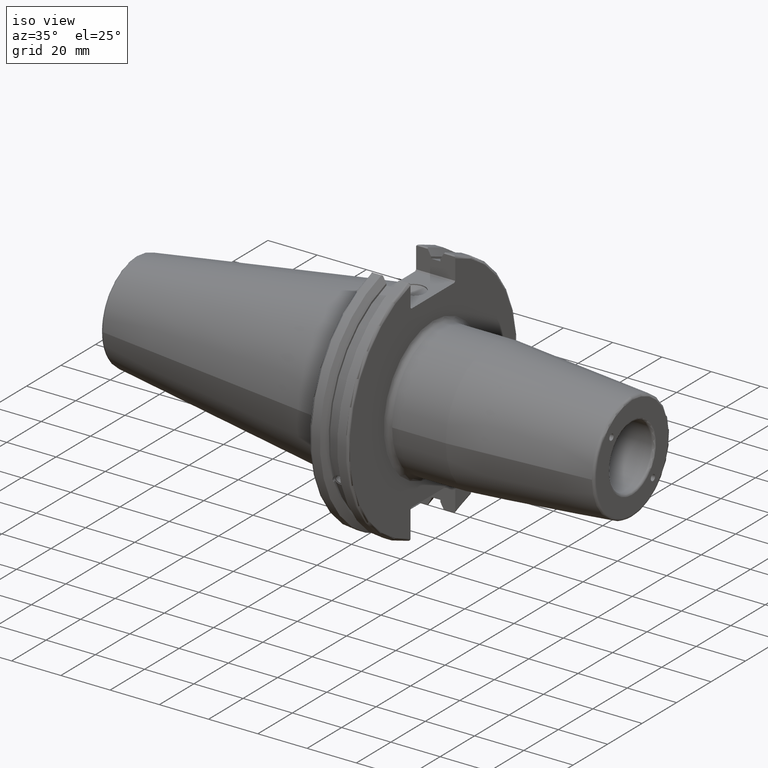
[diagram: clean part render]
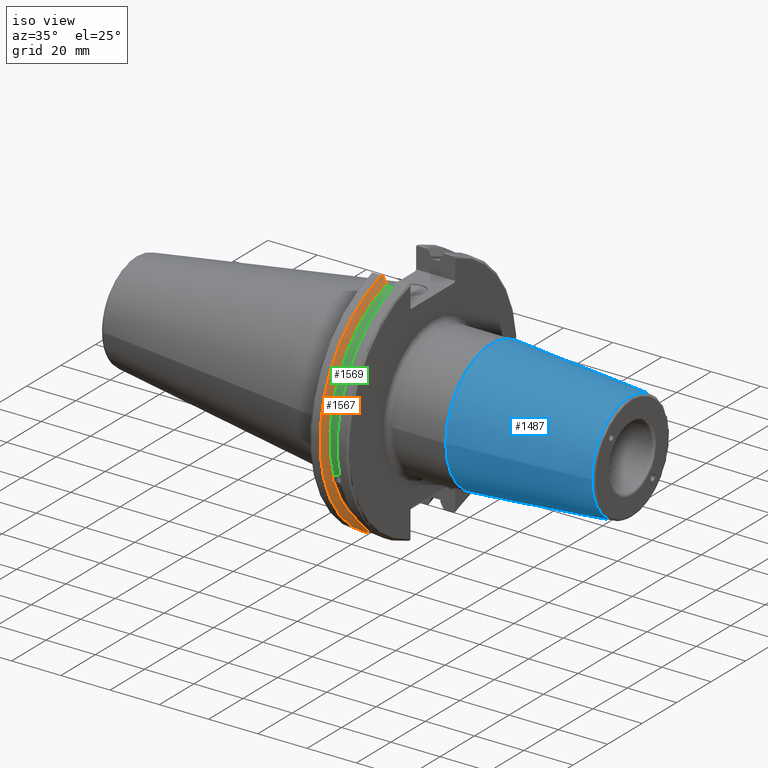
[diagram: same view with three faces highlighted in distinct colors, each labeled with its STEP entity id]
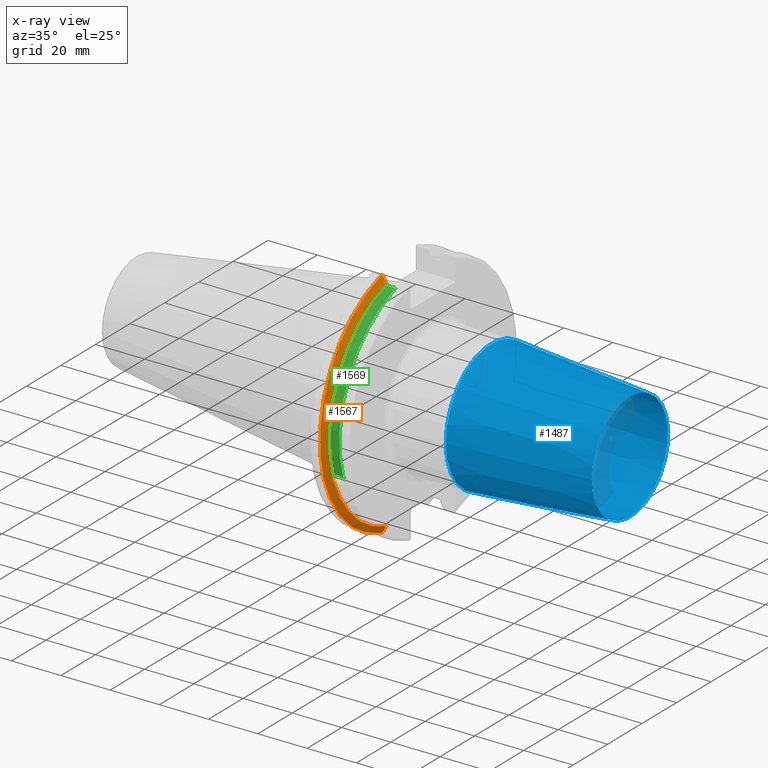
[diagram: x-ray of the same camera — body ghosted, the three highlighted faces saturated]
A machine part, iso view with three faces highlighted in distinct colors.
The next image is the same camera in x-ray (body ghosted, the three faces saturated) — at least one of them is partly hidden behind the body in this view.
Their STEP definitions:

[orange] entity #1567 — the highlighted conical surface has half-angle 60 deg.
#25=(
BOUNDED_CURVE()
B_SPLINE_CURVE(2,(#2961,#2962,#2963),.UNSPECIFIED.,.F.,.F.)
B_SPLINE_CURVE_WITH_KNOTS((3,3),(0.,0.275823910674601),.UNSPECIFIED.)
CURVE()
GEOMETRIC_REPRESENTATION_ITEM()
RATIONAL_B_SPLINE_CURVE((1.,1.00038235573593,1.00012873636487))
REPRESENTATION_ITEM('')
);
#26=(
BOUNDED_CURVE()
B_SPLINE_CURVE(2,(#2973,#2974,#2975),.UNSPECIFIED.,.F.,.F.)
B_SPLINE_CURVE_WITH_KNOTS((3,3),(0.0558332664507492,0.331657177124507),
 .UNSPECIFIED.)
CURVE()
GEOMETRIC_REPRESENTATION_ITEM()
RATIONAL_B_SPLINE_CURVE((1.00012873636807,1.00038235574544,1.))
REPRESENTATION_ITEM('')
);
#27=(
BOUNDED_CURVE()
B_SPLINE_CURVE(2,(#3008,#3009,#3010),.UNSPECIFIED.,.F.,.F.)
B_SPLINE_CURVE_WITH_KNOTS((3,3),(0.,0.0648240472897372),.UNSPECIFIED.)
CURVE()
GEOMETRIC_REPRESENTATION_ITEM()
RATIONAL_B_SPLINE_CURVE((1.,1.00011477674836,1.00019140645948))
REPRESENTATION_ITEM('')
);
#28=(
BOUNDED_CURVE()
B_SPLINE_CURVE(2,(#3016,#3017,#3018),.UNSPECIFIED.,.F.,.F.)
B_SPLINE_CURVE_WITH_KNOTS((3,3),(0.325260944932348,0.390084992222201),
 .UNSPECIFIED.)
CURVE()
GEOMETRIC_REPRESENTATION_ITEM()
RATIONAL_B_SPLINE_CURVE((1.00019140645916,1.00011477674817,1.))
REPRESENTATION_ITEM('')
);
#41=B_SPLINE_CURVE_WITH_KNOTS('',3,(#2505,#2506,#2507,#2508,#2509,#2510,
#2511,#2512,#2513,#2514,#2515,#2516,#2517,#2518),.UNSPECIFIED.,.F.,.F.,
(4,2,2,2,2,2,4),(0.426712868358719,0.441644498666906,0.48031331322313,0.518982127779354,
0.557650942335578,0.596319756891801,0.611251387199988),.UNSPECIFIED.);
#82=CONICAL_SURFACE('',#1755,47.8172386482472,1.0471975511966);
#446=FACE_OUTER_BOUND('',#556,.T.);
#556=EDGE_LOOP('',(#1454,#1455,#1456,#1457,#1458,#1459,#1460,#1461));
#595=CIRCLE('',#1662,46.4219772964944);
#617=CIRCLE('',#1709,49.2125);
#633=CIRCLE('',#1756,46.4219772964944);
#686=VERTEX_POINT('',#2502);
#687=VERTEX_POINT('',#2504);
#704=VERTEX_POINT('',#2595);
#762=VERTEX_POINT('',#2958);
#763=VERTEX_POINT('',#2960);
#766=VERTEX_POINT('',#2972);
#770=VERTEX_POINT('',#3006);
#771=VERTEX_POINT('',#3012);
#855=EDGE_CURVE('',#687,#686,#41,.T.);
#878=EDGE_CURVE('',#687,#704,#595,.T.);
#956=EDGE_CURVE('',#763,#762,#25,.T.);
#962=EDGE_CURVE('',#766,#704,#26,.T.);
#970=EDGE_CURVE('',#770,#762,#27,.T.);
#972=EDGE_CURVE('',#770,#771,#617,.T.);
#973=EDGE_CURVE('',#766,#771,#28,.T.);
#1015=EDGE_CURVE('',#763,#686,#633,.T.);
#1454=ORIENTED_EDGE('',*,*,#855,.T.);
#1455=ORIENTED_EDGE('',*,*,#1015,.F.);
#1456=ORIENTED_EDGE('',*,*,#956,.T.);
#1457=ORIENTED_EDGE('',*,*,#970,.F.);
#1458=ORIENTED_EDGE('',*,*,#972,.T.);
#1459=ORIENTED_EDGE('',*,*,#973,.F.);
#1460=ORIENTED_EDGE('',*,*,#962,.T.);
#1461=ORIENTED_EDGE('',*,*,#878,.F.);
#1567=ADVANCED_FACE('',(#446),#82,.T.);
#1662=AXIS2_PLACEMENT_3D('',#2596,#1933,#1934);
#1709=AXIS2_PLACEMENT_3D('',#3014,#2067,#2068);
#1755=AXIS2_PLACEMENT_3D('',#3130,#2180,#2181);
#1756=AXIS2_PLACEMENT_3D('',#3131,#2182,#2183);
#1933=DIRECTION('center_axis',(1.,0.,0.));
#1934=DIRECTION('ref_axis',(0.,0.,-1.));
#2067=DIRECTION('center_axis',(1.,0.,0.));
#2068=DIRECTION('ref_axis',(0.,0.,-1.));
#2180=DIRECTION('center_axis',(-1.,0.,0.));
#2181=DIRECTION('ref_axis',(0.,-1.,-1.22464679914735E-16));
#2182=DIRECTION('center_axis',(1.,0.,0.));
#2183=DIRECTION('ref_axis',(0.,0.,-1.));
#2502=CARTESIAN_POINT('',(9.2191,-43.9096390749305,-15.0646464421033));
#2504=CARTESIAN_POINT('',(9.2191,-43.3201030900029,-16.684383248648));
#2505=CARTESIAN_POINT('Ctrl Pts',(9.21910000000001,-43.3201030900029,-16.6843832486479));
#2506=CARTESIAN_POINT('Ctrl Pts',(9.20211843903392,-43.3613106941341,-16.6592273018006));
#2507=CARTESIAN_POINT('Ctrl Pts',(9.18608675403322,-43.4012416983557,-16.6326763251437));
#2508=CARTESIAN_POINT('Ctrl Pts',(9.13238673845037,-43.5391037343221,-16.5325130832406));
#2509=CARTESIAN_POINT('Ctrl Pts',(9.09621610663556,-43.6406982153491,-16.441180795372));
#2510=CARTESIAN_POINT('Ctrl Pts',(9.04690868251975,-43.8110833825827,-16.2291323464527));
#2511=CARTESIAN_POINT('Ctrl Pts',(9.0341,-43.8794096049168,-16.10796730316));
#2512=CARTESIAN_POINT('Ctrl Pts',(9.0341,-43.9675796948952,-15.8657219718732));
#2513=CARTESIAN_POINT('Ctrl Pts',(9.04690868251975,-43.9931221605126,-15.7289849146254));
#2514=CARTESIAN_POINT('Ctrl Pts',(9.09621610663556,-43.9989016655819,-15.4570249042867));
#2515=CARTESIAN_POINT('Ctrl Pts',(9.13238673845037,-43.9797830409458,-15.3217566390708));
#2516=CARTESIAN_POINT('Ctrl Pts',(9.18608675403322,-43.9385582852181,-15.1564111356409));
#2517=CARTESIAN_POINT('Ctrl Pts',(9.20211843903392,-43.9250360001461,-15.1104047527575));
#2518=CARTESIAN_POINT('Ctrl Pts',(9.2191,-43.9096390749305,-15.0646464421033));
#2595=CARTESIAN_POINT('',(9.2191,-12.95,-44.5791147973604));
#2596=CARTESIAN_POINT('Origin',(9.2191,0.,0.));
#2958=CARTESIAN_POINT('',(7.88638960562424,-12.95,46.9780755322918));
#2960=CARTESIAN_POINT('',(9.2191,-12.95,44.5791147973604));
#2961=CARTESIAN_POINT('Ctrl Pts',(9.2191,-12.95,44.5791147973604));
#2962=CARTESIAN_POINT('Ctrl Pts',(8.57020449055857,-12.95,45.7494966802148));
#2963=CARTESIAN_POINT('Ctrl Pts',(7.88638960562424,-12.95,46.9780755322918));
#2972=CARTESIAN_POINT('',(7.88638960562425,-12.95,-46.9780755322918));
#2973=CARTESIAN_POINT('Ctrl Pts',(7.88638960562425,-12.95,-46.9780755322918));
#2974=CARTESIAN_POINT('Ctrl Pts',(8.57020449054166,-12.95,-45.7494966802452));
#2975=CARTESIAN_POINT('Ctrl Pts',(9.2191,-12.95,-44.5791147973604));
#3006=CARTESIAN_POINT('',(7.60799096595127,-13.4317035994433,47.3440544806494));
#3008=CARTESIAN_POINT('Ctrl Pts',(7.60799096595126,-13.4317035994433,47.3440544806494));
#3009=CARTESIAN_POINT('Ctrl Pts',(7.7482689666382,-13.1896660169966,47.1601640966265));
#3010=CARTESIAN_POINT('Ctrl Pts',(7.88638960562424,-12.95,46.9780755322918));
#3012=CARTESIAN_POINT('',(7.60799096595127,-13.4317035994433,-47.3440544806494));
#3014=CARTESIAN_POINT('Origin',(7.60799096595127,0.,0.));
#3016=CARTESIAN_POINT('Ctrl Pts',(7.88638960562425,-12.95,-46.9780755322918));
#3017=CARTESIAN_POINT('Ctrl Pts',(7.74826896663813,-13.1896660169967,-47.1601640966265));
#3018=CARTESIAN_POINT('Ctrl Pts',(7.60799096595127,-13.4317035994434,-47.3440544806494));
#3130=CARTESIAN_POINT('Origin',(8.41354548297563,0.,0.));
#3131=CARTESIAN_POINT('Origin',(9.2191,0.,0.));

[blue] entity #1487 — the highlighted conical surface has half-angle 4.5 deg.
#69=CONICAL_SURFACE('',#1609,24.25,0.0785398163397448);
#84=LINE('',#2222,#178);
#178=VECTOR('',#1797,24.25);
#366=FACE_OUTER_BOUND('',#457,.T.);
#457=EDGE_LOOP('',(#1037,#1038,#1039,#1040,#1041));
#567=CIRCLE('',#1607,22.0725268420749);
#568=CIRCLE('',#1608,22.0725268420749);
#569=CIRCLE('',#1610,26.5);
#643=VERTEX_POINT('',#2215);
#644=VERTEX_POINT('',#2217);
#645=VERTEX_POINT('',#2221);
#800=EDGE_CURVE('',#643,#644,#567,.T.);
#801=EDGE_CURVE('',#644,#643,#568,.T.);
#802=EDGE_CURVE('',#644,#645,#84,.T.);
#803=EDGE_CURVE('',#645,#645,#569,.T.);
#1037=ORIENTED_EDGE('',*,*,#801,.F.);
#1038=ORIENTED_EDGE('',*,*,#802,.T.);
#1039=ORIENTED_EDGE('',*,*,#803,.T.);
#1040=ORIENTED_EDGE('',*,*,#802,.F.);
#1041=ORIENTED_EDGE('',*,*,#800,.F.);
#1487=ADVANCED_FACE('',(#366),#69,.T.);
#1607=AXIS2_PLACEMENT_3D('',#2218,#1791,#1792);
#1608=AXIS2_PLACEMENT_3D('',#2219,#1793,#1794);
#1609=AXIS2_PLACEMENT_3D('',#2220,#1795,#1796);
#1610=AXIS2_PLACEMENT_3D('',#2223,#1798,#1799);
#1791=DIRECTION('center_axis',(1.,0.,0.));
#1792=DIRECTION('ref_axis',(0.,-1.,3.06161699786838E-17));
#1793=DIRECTION('center_axis',(1.,0.,0.));
#1794=DIRECTION('ref_axis',(0.,-1.,3.06161699786838E-17));
#1795=DIRECTION('center_axis',(-1.,0.,0.));
#1796=DIRECTION('ref_axis',(0.,1.,0.));
#1797=DIRECTION('',(-0.996917333733128,-0.0784590957278449,-9.60846804471011E-18));
#1798=DIRECTION('center_axis',(1.,0.,0.));
#1799=DIRECTION('ref_axis',(0.,0.,-1.));
#2215=CARTESIAN_POINT('',(99.0784590957279,-2.70310493462411E-15,22.0725268420749));
#2217=CARTESIAN_POINT('',(99.0784590957279,-22.0725268420749,-2.70310493462411E-15));
#2218=CARTESIAN_POINT('Origin',(99.0784590957279,0.,-3.37888116828014E-15));
#2219=CARTESIAN_POINT('Origin',(99.0784590957279,0.,-3.37888116828014E-15));
#2220=CARTESIAN_POINT('Origin',(71.4110393436069,0.,0.));
#2221=CARTESIAN_POINT('',(42.8220786872138,-26.5,-3.24531401774049E-15));
#2222=CARTESIAN_POINT('',(71.4110393436069,-24.25,-2.96976848793233E-15));
#2223=CARTESIAN_POINT('Origin',(42.8220786872138,0.,0.));

[green] entity #1569 — the highlighted cylindrical surface (partial cylindrical patch) has radius 45.6435 mm, axis along (1, 0, 0).
#40=B_SPLINE_CURVE_WITH_KNOTS('',3,(#2488,#2489,#2490,#2491,#2492,#2493,
#2494,#2495,#2496,#2497,#2498,#2499,#2500,#2501),.UNSPECIFIED.,.F.,.F.,
(4,2,2,2,2,2,4),(0.40154831257669,0.474697095495631,0.553813286063443,0.632929476631254,
0.712045667199066,0.791161857766877,0.864310640685818),.UNSPECIFIED.);
#148=LINE('',#2967,#242);
#242=VECTOR('',#2049,10.);
#298=CYLINDRICAL_SURFACE('',#1759,45.6435);
#448=FACE_OUTER_BOUND('',#558,.T.);
#558=EDGE_LOOP('',(#1466,#1467,#1468,#1469));
#634=CIRCLE('',#1758,45.6435);
#635=CIRCLE('',#1760,45.6435);
#684=VERTEX_POINT('',#2485);
#685=VERTEX_POINT('',#2487);
#764=VERTEX_POINT('',#2964);
#765=VERTEX_POINT('',#2966);
#853=EDGE_CURVE('',#685,#684,#40,.T.);
#958=EDGE_CURVE('',#765,#764,#148,.T.);
#1016=EDGE_CURVE('',#764,#685,#634,.T.);
#1017=EDGE_CURVE('',#765,#684,#635,.T.);
#1466=ORIENTED_EDGE('',*,*,#853,.T.);
#1467=ORIENTED_EDGE('',*,*,#1017,.F.);
#1468=ORIENTED_EDGE('',*,*,#958,.T.);
#1469=ORIENTED_EDGE('',*,*,#1016,.T.);
#1569=ADVANCED_FACE('',(#448),#298,.T.);
#1758=AXIS2_PLACEMENT_3D('',#3133,#2186,#2187);
#1759=AXIS2_PLACEMENT_3D('',#3134,#2188,#2189);
#1760=AXIS2_PLACEMENT_3D('',#3135,#2190,#2191);
#2049=DIRECTION('',(-1.,0.,0.));
#2186=DIRECTION('center_axis',(1.,0.,0.));
#2187=DIRECTION('ref_axis',(0.,0.,-1.));
#2188=DIRECTION('center_axis',(1.,0.,0.));
#2189=DIRECTION('ref_axis',(0.,-0.888619069115281,0.458645996390125));
#2190=DIRECTION('center_axis',(1.,0.,0.));
#2191=DIRECTION('ref_axis',(0.,0.,-1.));
#2485=CARTESIAN_POINT('',(13.0491,-43.1779814500336,-14.7983448449669));
#2487=CARTESIAN_POINT('',(9.2191,-43.1779814500336,-14.7983448449669));
#2488=CARTESIAN_POINT('Ctrl Pts',(9.2191,-43.1779814500335,-14.7983448449669));
#2489=CARTESIAN_POINT('Ctrl Pts',(9.32532177598176,-43.2545173750974,-14.5750315766731));
#2490=CARTESIAN_POINT('Ctrl Pts',(9.47680807557665,-43.3223492818373,-14.3712521044637));
#2491=CARTESIAN_POINT('Ctrl Pts',(9.83560503400179,-43.4340904392251,-14.0300988117073));
#2492=CARTESIAN_POINT('Ctrl Pts',(10.0717203280543,-43.4832903960863,-13.8760243976176));
#2493=CARTESIAN_POINT('Ctrl Pts',(10.5891059167872,-43.54802519266,-13.6715068146718));
#2494=CARTESIAN_POINT('Ctrl Pts',(10.870379364774,-43.5636826100883,-13.6211104428929));
#2495=CARTESIAN_POINT('Ctrl Pts',(11.397820635226,-43.5636826100883,-13.6211104428929));
#2496=CARTESIAN_POINT('Ctrl Pts',(11.6790940832128,-43.54802519266,-13.6715068146718));
#2497=CARTESIAN_POINT('Ctrl Pts',(12.1964796719457,-43.4832903960863,-13.8760243976176));
#2498=CARTESIAN_POINT('Ctrl Pts',(12.4325949659982,-43.4340904392251,-14.0300988117073));
#2499=CARTESIAN_POINT('Ctrl Pts',(12.7913919244233,-43.3223492818373,-14.3712521044637));
#2500=CARTESIAN_POINT('Ctrl Pts',(12.9428782240182,-43.2545173750974,-14.5750315766731));
#2501=CARTESIAN_POINT('Ctrl Pts',(13.0491,-43.1779814500335,-14.7983448449669));
#2964=CARTESIAN_POINT('',(9.2191,-12.95,43.7678716897452));
#2966=CARTESIAN_POINT('',(13.0491,-12.95,43.7678716897452));
#2967=CARTESIAN_POINT('',(11.1341,-12.95,43.7678716897452));
#3133=CARTESIAN_POINT('Origin',(9.2191,0.,0.));
#3134=CARTESIAN_POINT('Origin',(11.1341,0.,0.));
#3135=CARTESIAN_POINT('Origin',(13.0491,0.,0.));